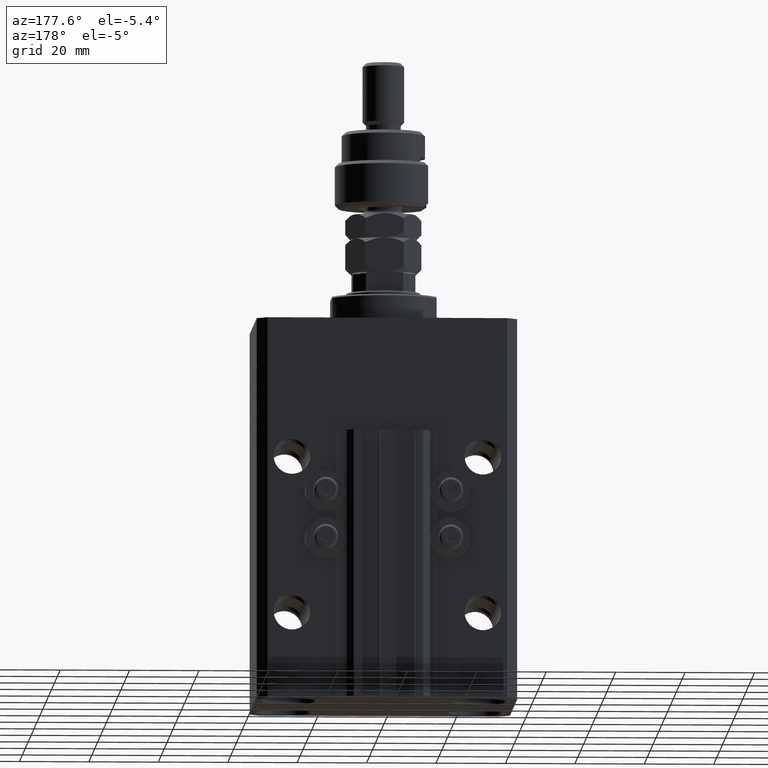
[diagram: clean part render]
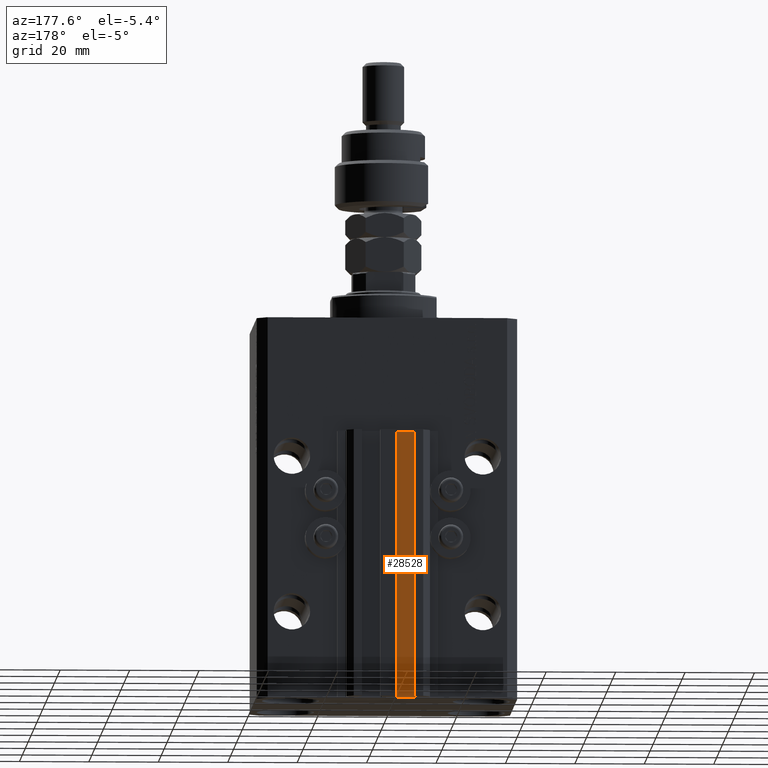
[diagram: same view with one face highlighted and labeled with its STEP entity id]
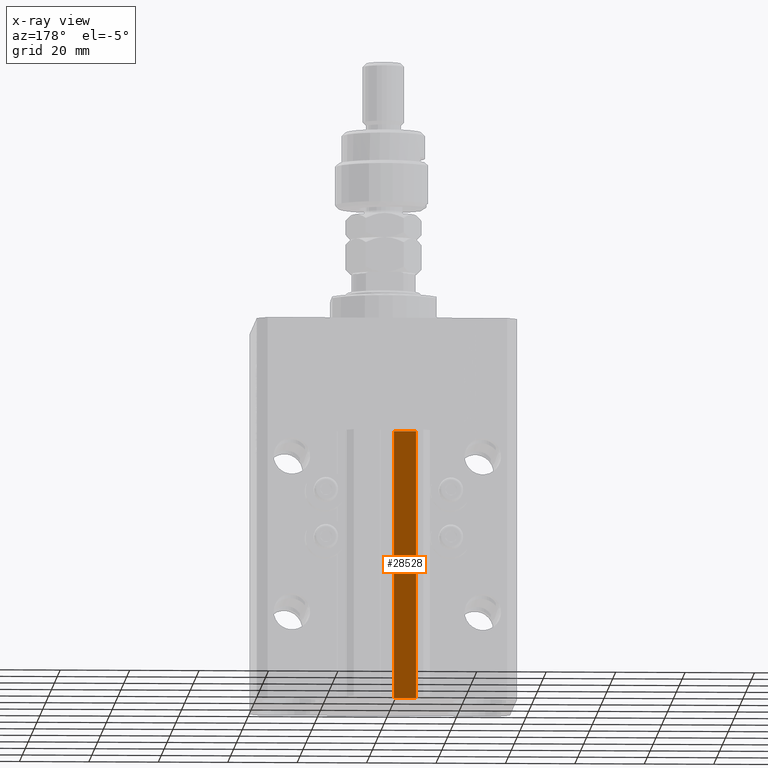
[diagram: x-ray of the same camera — body ghosted, the highlighted face saturated]
A machine part, auxiliary view. The second image highlights one B-rep face of the part: STEP entity #28528.
The next image is the same camera in x-ray: the body ghosted, the highlighted face saturated — about 0% of this face is hidden behind the body in this view.
In plain terms, the highlighted planar face has unit normal (0, 1, 0).
Its self-contained STEP definition (entity closure, byte-faithful):
#2502 = LINE ( 'NONE', #17717, #12940 ) ;
#2716 = LINE ( 'NONE', #49382, #23388 ) ;
#2777 = EDGE_CURVE ( 'NONE', #5154, #5912, #2716, .T. ) ;
#3755 = VERTEX_POINT ( 'NONE', #17141 ) ;
#5154 = VERTEX_POINT ( 'NONE', #26272 ) ;
#5912 = VERTEX_POINT ( 'NONE', #49914 ) ;
#11816 = CARTESIAN_POINT ( 'NONE',  ( -1.800000000000000933, 29.50000000000000355, -110.0000000000000000 ) ) ;
#12940 = VECTOR ( 'NONE', #29147, 1000.000000000000000 ) ;
#13841 = VERTEX_POINT ( 'NONE', #19183 ) ;
#13999 = VECTOR ( 'NONE', #17887, 1000.000000000000000 ) ;
#14322 = CARTESIAN_POINT ( 'NONE',  ( -1.800000000000000933, 29.50000000000000355, -33.00000000000000000 ) ) ;
#14633 = DIRECTION ( 'NONE',  ( -1.000000000000000000, 0.000000000000000000, 0.000000000000000000 ) ) ;
#17141 = CARTESIAN_POINT ( 'NONE',  ( -8.199999999999997513, 29.50000000000000355, -33.00000000000000000 ) ) ;
#17717 = CARTESIAN_POINT ( 'NONE',  ( -8.199999999999997513, 29.50000000000000355, -110.0000000000000000 ) ) ;
#17818 = AXIS2_PLACEMENT_3D ( 'NONE', #11816, #23244, #38709 ) ;
#17887 = DIRECTION ( 'NONE',  ( -1.000000000000000000, 0.000000000000000000, 0.000000000000000000 ) ) ;
#18383 = LINE ( 'NONE', #14322, #13999 ) ;
#19183 = CARTESIAN_POINT ( 'NONE',  ( -1.800000000000000933, 29.50000000000000355, -33.00000000000000000 ) ) ;
#19442 = PLANE ( 'NONE',  #17818 ) ;
#23244 = DIRECTION ( 'NONE',  ( 0.000000000000000000, 1.000000000000000000, -0.000000000000000000 ) ) ;
#23388 = VECTOR ( 'NONE', #14633, 1000.000000000000000 ) ;
#23961 = LINE ( 'NONE', #42732, #36236 ) ;
#24076 = EDGE_LOOP ( 'NONE', ( #27502, #25683, #46972, #33781 ) ) ;
#25683 = ORIENTED_EDGE ( 'NONE', *, *, #34923, .F. ) ;
#26272 = CARTESIAN_POINT ( 'NONE',  ( -1.800000000000000933, 29.50000000000000355, -110.0000000000000000 ) ) ;
#27502 = ORIENTED_EDGE ( 'NONE', *, *, #49755, .F. ) ;
#28528 = ADVANCED_FACE ( 'NONE', ( #46071 ), #19442, .T. ) ;
#29147 = DIRECTION ( 'NONE',  ( 0.000000000000000000, 0.000000000000000000, 1.000000000000000000 ) ) ;
#33781 = ORIENTED_EDGE ( 'NONE', *, *, #39442, .T. ) ;
#34923 = EDGE_CURVE ( 'NONE', #5154, #13841, #23961, .T. ) ;
#36236 = VECTOR ( 'NONE', #38926, 1000.000000000000000 ) ;
#38709 = DIRECTION ( 'NONE',  ( 0.000000000000000000, 0.000000000000000000, 1.000000000000000000 ) ) ;
#38926 = DIRECTION ( 'NONE',  ( 0.000000000000000000, 0.000000000000000000, 1.000000000000000000 ) ) ;
#39442 = EDGE_CURVE ( 'NONE', #5912, #3755, #2502, .T. ) ;
#42732 = CARTESIAN_POINT ( 'NONE',  ( -1.800000000000000933, 29.50000000000000355, -110.0000000000000000 ) ) ;
#46071 = FACE_OUTER_BOUND ( 'NONE', #24076, .T. ) ;
#46972 = ORIENTED_EDGE ( 'NONE', *, *, #2777, .T. ) ;
#49382 = CARTESIAN_POINT ( 'NONE',  ( -1.800000000000000933, 29.50000000000000355, -110.0000000000000000 ) ) ;
#49755 = EDGE_CURVE ( 'NONE', #13841, #3755, #18383, .T. ) ;
#49914 = CARTESIAN_POINT ( 'NONE',  ( -8.199999999999997513, 29.50000000000000355, -110.0000000000000000 ) ) ;